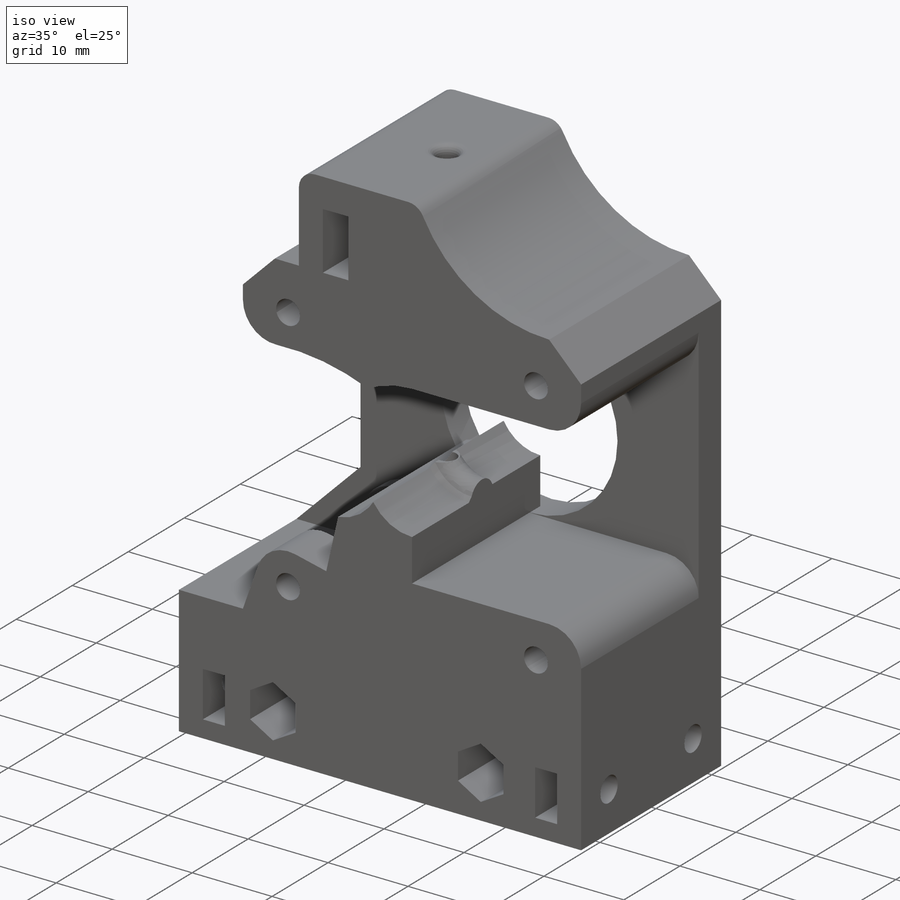
[diagram: iso view]
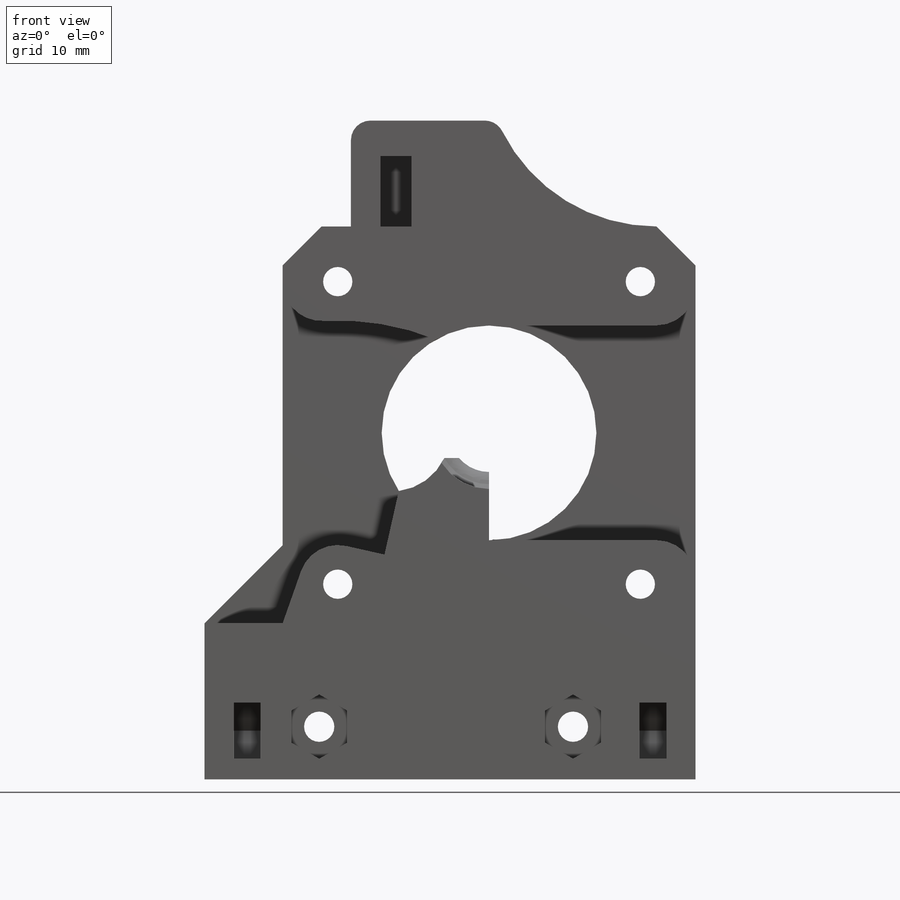
[diagram: front view]
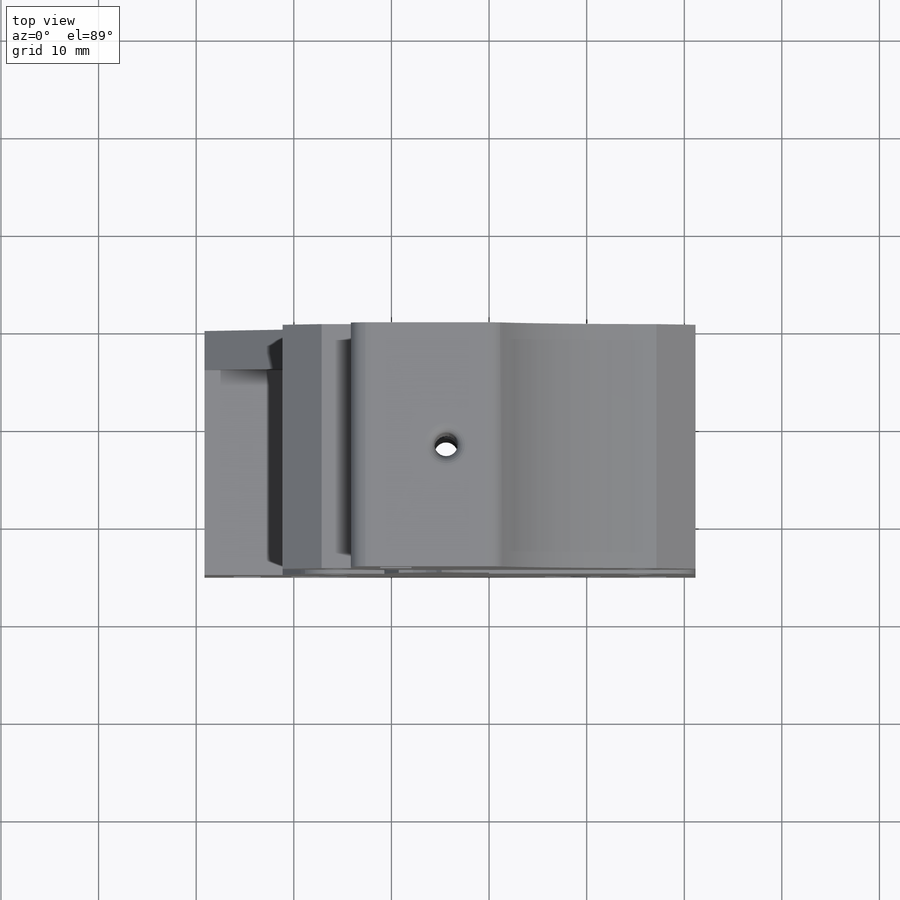
[diagram: top view]
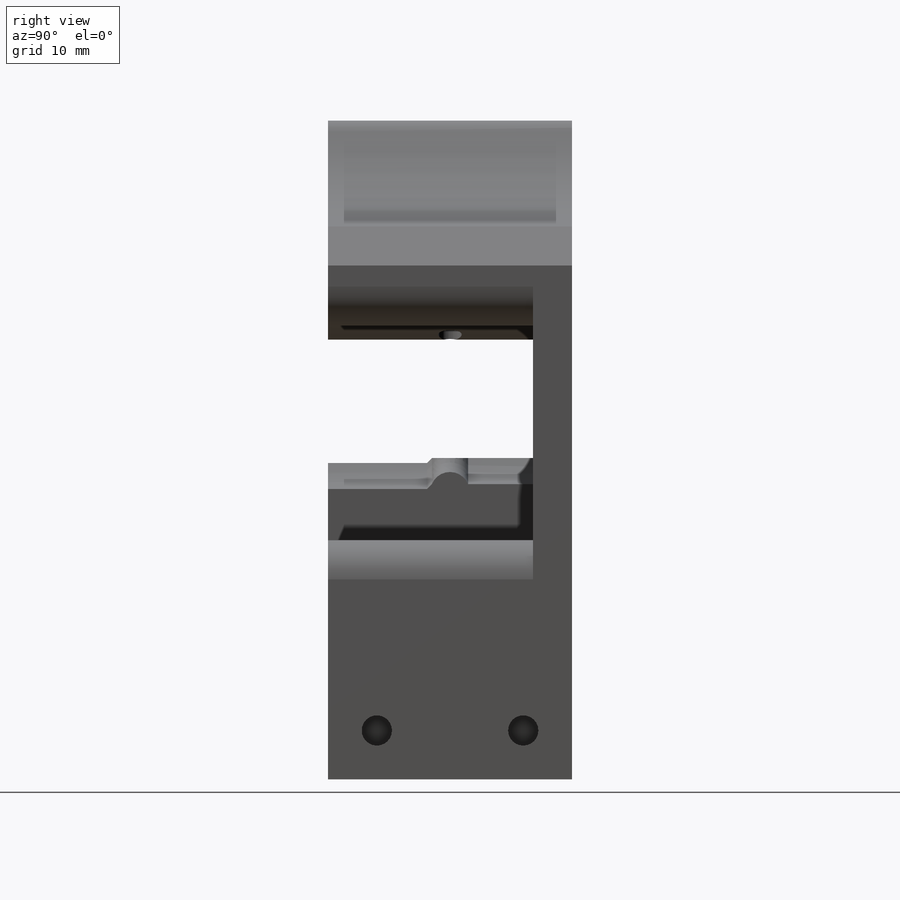
[diagram: right view]
SOLIDWORKS PART (.sldprt)
format: sldprt  version: not decoded by parser v0  size: 932,352 bytes
history: native  units: mm
features: sketch x28, cut_extrude x16, extrude x10, plane x4, fillet x4, material x1, cut_revolve x1, revolve x1, chamfer x1, mirror x1 (+13 scaffold rows collapsed)
feature tree (80):
  scaffold x13  (default folders/planes/origin — collapsed)
  material  "Material <not specified>"
  plane  "extruder center plane"  Offset=4.4mm
  sketch  "Sketch2"  dims[D1=22.0mm D4=3.0mm D2=42.3mm D3=31.0mm D5=32.0mm D6=20.0mm]
  extrude  "Boss-Extrude1"  Depth=25mm
  plane  "Plane2"
  sketch  "Sketch3"  dims[c1.D1=~8.729924mm c2.D1=90.0deg c3.D1=~8.729924mm c4.D1=90.0deg c5.D1=16.1mm c5.D2=3.8mm c5.D3=12.1mm c5.D4=5.0mm]
  cut_revolve  "Cut-Revolve1"  Angle=360deg
  sketch  "Sketch4"  dims[D1=0.0mm]
  cut_extrude  "Cut-Extrude1"  [1 undecoded]
  sketch  "Sketch5"
  cut_extrude  "Cut-Extrude2"  [1 undecoded]
  sketch  "Sketch6"  dims[D1=3.0mm D2=2.0mm]
  cut_extrude  "Cut-Extrude3"  [1 undecoded]
  sketch  "Sketch7"  dims[D2=3.1mm D1=26.0mm]
  cut_extrude  "Cut-Extrude4"  [1 undecoded]
  sketch  "Sketch9"  dims[D1=10.5mm D2=12.0mm D3=10.0mm]
  extrude  "Boss-Extrude2"  Depth=0.1mm
  sketch  "Sketch10"  dims[D1=4.0mm D2=6.0mm]
  revolve  "Revolve1"  [1 undecoded]
  sketch  "Sketch8"  dims[D1=2.4mm]
  cut_extrude  "filament hole"  [1 undecoded]
  plane  "Plane3"
  sketch  "Sketch11"  dims[D1=6.0mm]
  cut_extrude  "Cut-Extrude6"  Depth=5mm
  sketch  "Sketch12"  dims[D1=0.5mm]
  cut_extrude  "Cut-Extrude7"  [1 undecoded]
  chamfer  "Chamfer1"  Distance=0.5mm Angle=45deg
  sketch  "Sketch14"  dims[D1=8.0mm D2=27.0mm D3=7.0mm]
  cut_extrude  "Cut-Extrude8"  Depth=4mm
  sketch  "Sketch15"
  cut_extrude  "Cut-Extrude9"  [1 undecoded]
  sketch  "Sketch16"
  extrude  "Boss-Extrude4"  Depth=2mm
  sketch  "Sketch17"  dims[D1=3.2mm D2=7.2mm D3=3.0mm]
  cut_extrude  "Cut-Extrude10"  Depth=4.25mm
  sketch  "Sketch18"  dims[D1=4.1mm]
  cut_extrude  "Cut-Extrude11"  [1 undecoded]
  fillet  "Fillet1"  Radius=4mm
  sketch  "Sketch19"  dims[D1=0.0mm]
  extrude  "Boss-Extrude5"  [1 undecoded]
  sketch  "Sketch21"  dims[D1=15.0mm]
  cut_extrude  "Cut-Extrude12"  [1 undecoded]
  fillet  "Fillet2"  Radius=2mm
  sketch  "Sketch22"  dims[D1=4.0mm D2=~26.969802mm]
  cut_extrude  "Cut-Extrude13"  [1 undecoded]
  fillet  "Fillet3"  Radius=4mm
  sketch  "Sketch23"
  extrude  "Boss-Extrude6"  Depth=8mm
  sketch  "Sketch24"  dims[c1.D1=~8.137363mm c2.D1=45.0deg]
  extrude  "Boss-Extrude7"  [1 undecoded]
  sketch  "Sketch25"  dims[D1=5.7mm]
  cut_extrude  "Cut-Extrude14"  Depth=7mm
  sketch  "Sketch27"  dims[D4=3.1mm D1=5.7mm D2=15.0mm D3=5.0mm]
  cut_extrude  "Cut-Extrude15"  Depth=2.75mm
  cut_extrude  "Cut-Extrude18"  [1 undecoded]
  sketch  "Sketch27<3>"  dims[D1=4.0mm]
  sketch  "Sketch29"  dims[D1=8.8mm]
  extrude  "Boss-Extrude9"  [1 undecoded]
  plane  "Plane4"
  mirror  "Mirror2"
  fillet  "Fillet4"  Radius=1mm
  sketch  "Sketch30"  dims[c1.D2=~3.897188mm c1.D3=~6.265789mm c2.D2=0.5mm c2.D3=0.5mm c2.D1=0.0mm c3.D2=0.5mm c3.D4=0.5mm]
  extrude  "Boss-Extrude10"  Depth=0.4mm
  sketch  "Sketch33"  dims[c1.D4=0.5mm c1.D6=3.0mm c1.D8=3.0mm c2.D6=3.0mm c2.D9=0.5mm c2.D10=~0.530552mm c2.D1=0.0mm c2.D2=0.0mm c2.D3=0.5mm c2.D5=4.0 c2.D7=4.0]
  extrude  "Boss-Extrude16"  Depth=0.3mm
  sketch  "Sketch34"
  extrude  "Boss-Extrude17"  Depth=2mm
decode coverage: 41 of 62 modeling features carry decoded parameters
note: ~ marks probable driven/reference dimensions
note: 15 parameter values undecoded
summary: no parameter record found for 15 features
note: suppression state not decoded; provenance and decode notes live in map.json
